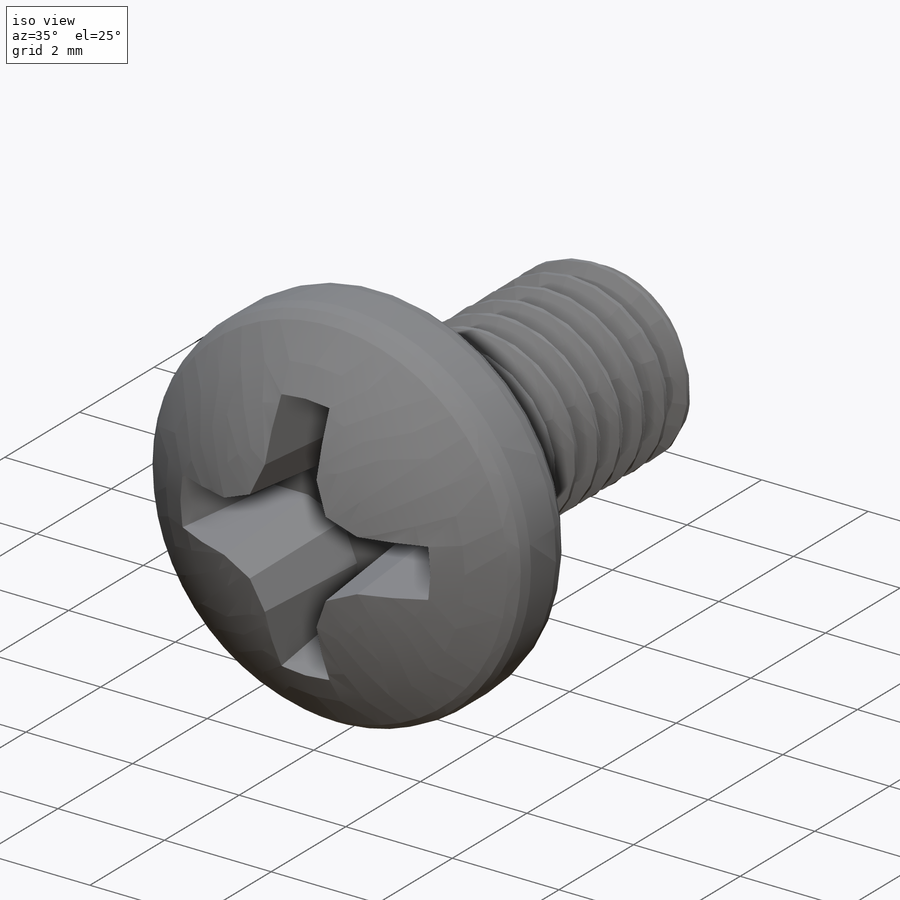
[diagram: iso view]
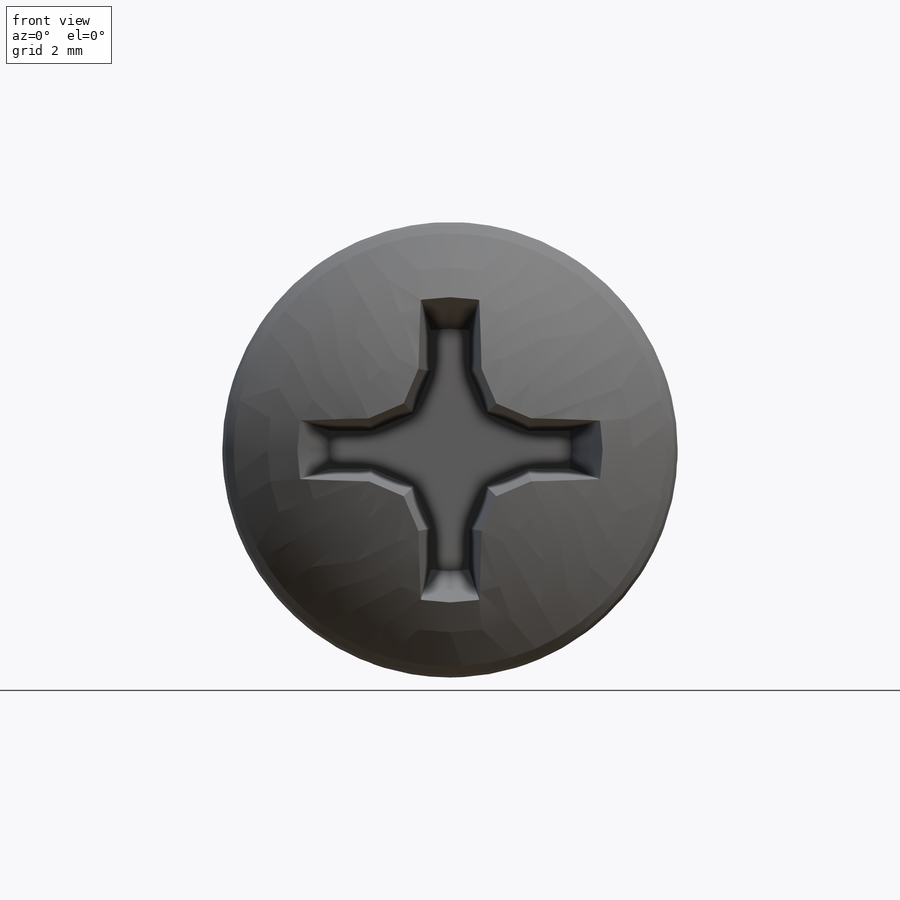
[diagram: front view]
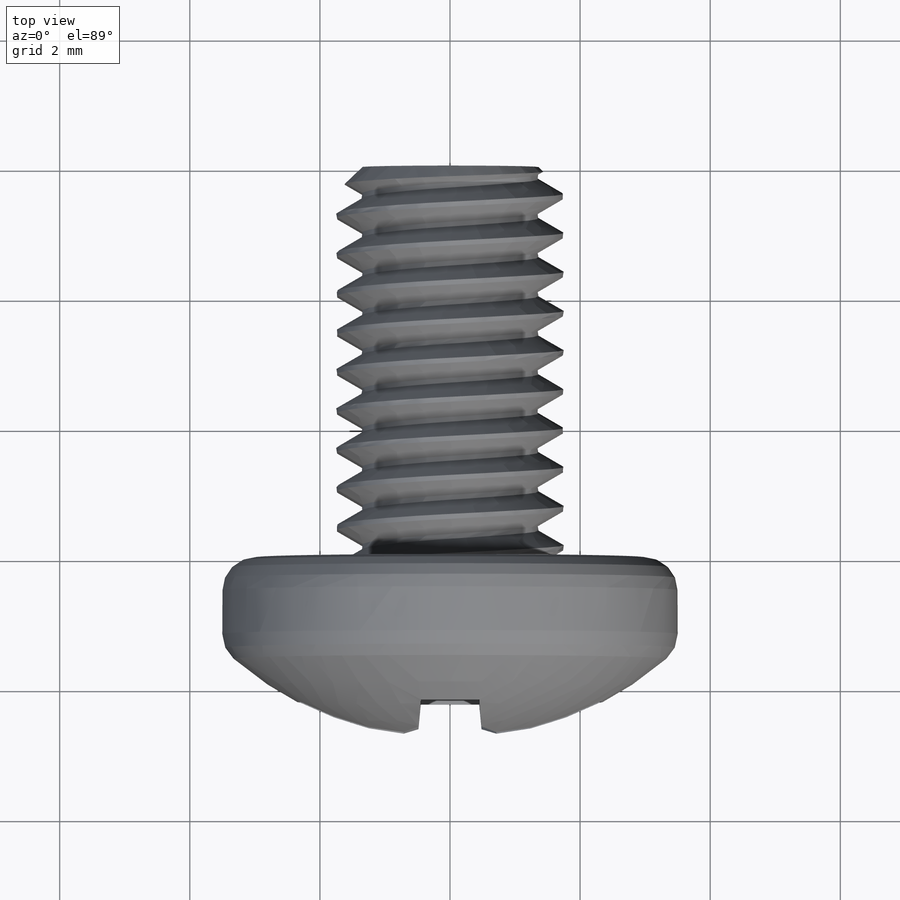
[diagram: top view]
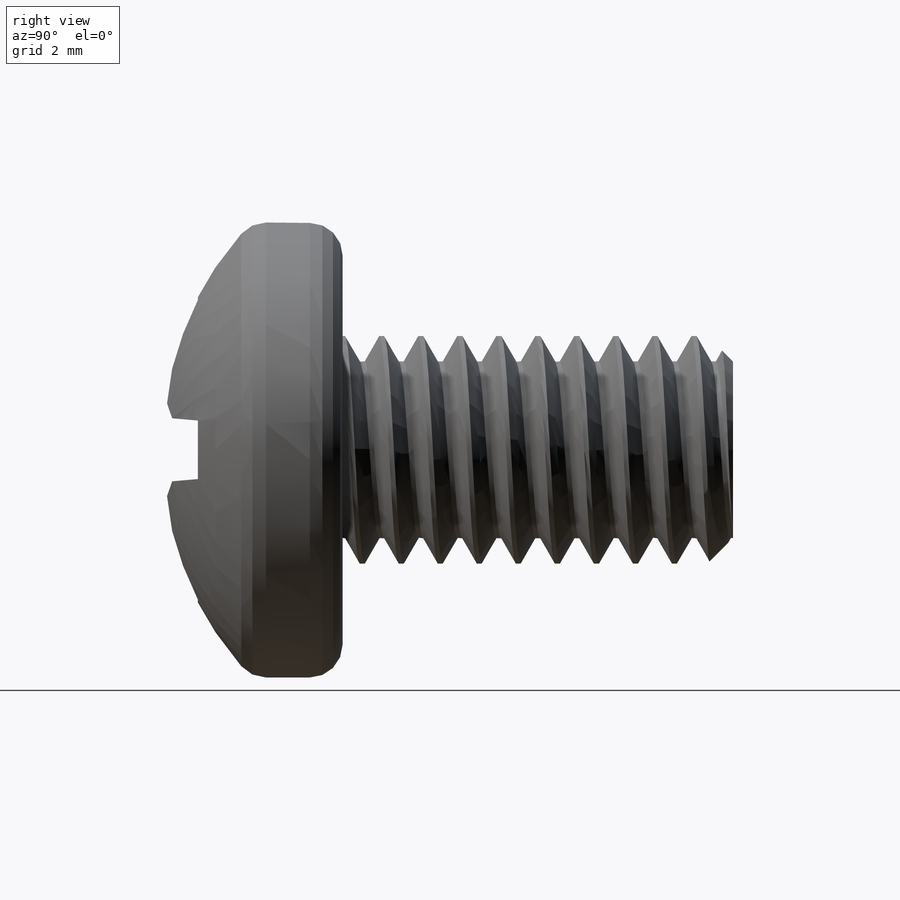
[diagram: right view]
SOLIDWORKS PART (.sldprt)
format: sldprt  version: not decoded by parser v0  size: 570,368 bytes
history: native  units: mm
features: sketch x12, cut_revolve x3, helix x2, revolve x2, sweep x2, plane x2, cut_extrude x2, material x1, pattern_circular x1 (+13 scaffold rows collapsed)
feature tree (40):
  scaffold x13  (default folders/planes/origin — collapsed)
  material  "Material <not specified>"
  sketch  "Sketch1"  dims[decimal equ=3.5mm]
  helix  "Helix/Spiral1"  Pitch=6.6mm helix length=6.6mm pitch=0.6mm TPI=11
  sketch  "Sketch2"  dims[c1.D1=~1.278166mm c2.D1=60.0deg c2.D2=~2.687556mm c3.D2=30.0deg c3.D3=0.075mm c3.D4=0.3mm]
  sketch  "Sketch3"  dims[length=6.0mm D2=~0.740192mm]
  revolve  "Revolve1"  Angle=360deg
  sweep  "Sweep1"
  sketch  "Sketch6"  dims[D1=0.0mm]
  sketch  "Sketch7"  dims[D1=0.0mm]
  helix  "Helix/Spiral2"  Pitch=0.6mm
  sweep  "Sweep2"
  sketch  "Sketch4"  dims[c1.D1=2.54mm c1.D2=2.54mm c2.D2=45.0deg c2.D3=3.175mm]
  cut_revolve  "Cut-Revolve1"  Angle=360deg
  sketch  "Sketch10"  dims[screw length=20.0mm D1=254.0mm D2=12.7mm]
  cut_revolve  "Cut-Revolve2"  Angle=360deg
  plane  "Plane3"
  sketch  "Sketch8"  dims[screw length=25.4mm head dia=7.0mm head height=2.8mm D1=20.0mm]
  revolve  "Revolve2"  Angle=360deg
  sketch  "Sketch11"  dims[D1=0.504mm D5=0.508mm D2=0.635mm D3=0.635mm D4=0.635mm]
  cut_revolve  "Cut-Revolve3"  Angle=360deg
  plane  "Plane1"
  sketch  "Sketch12"  dims[c1.phillips dia=3.175mm c1.D2=~2.38125mm c2.D2=45.0deg c2.D3=0.508mm c2.D4=~2.38125mm c3.D4=22.5deg c3.slot width=1.0mm c3.phillips dia=5.0mm]
  cut_extrude  "Cut-Extrude1"  Depth=2.38mm
  cut_extrude  "Draft4"  [1 undecoded]
  pattern_circular  "CirPattern1"  Count=4 Angle=360deg
  sketch  "Sketch13"
  sketch  "Sketch14"
decode coverage: 19 of 24 modeling features carry decoded parameters
note: ~ marks probable driven/reference dimensions
note: 1 parameter value undecoded
note: suppression state not decoded; provenance and decode notes live in map.json
